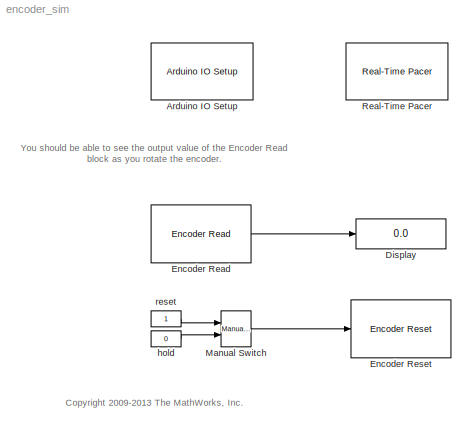
MODEL encoder_sim
KIND model
BLOCK [Reference] Arduino IO Setup  REF=arduino_io_lib/Arduino IO Setup
  Ports = []
  Priority = 3
  SourceBlock = arduino_io_lib/Arduino IO Setup
  SourceType = Arduino IO Setup
  arduinoVar = Temporary arduino variable: Arduino2
  comPort = COM17
  workspaceVarName = b
BLOCK [Display] Display
  Decimation = 1
  Lockdown = off
  Ports = [1]
BLOCK [Reference] Encoder Read  REF=arduino_io_lib/Encoder Read
  DbDl = 17
  Ports = [0, 1]
  SourceBlock = arduino_io_lib/Encoder Read
  SourceType = Arduino IO Encoder Read
  T = 0.2
  arduinoVar = Temporary arduino variable: Arduino2
  encNum = 1
  pinA = 3
  pinB = 2
BLOCK [Reference] Encoder Reset  REF=arduino_io_lib/Encoder Reset
  Ports = [1]
  SourceBlock = arduino_io_lib/Encoder Reset
  SourceType = Arduino IO Encoder Reset
  T = 0.2
  arduinoVar = Temporary arduino variable: Arduino2
  encNum = 1
BLOCK [Reference] Manual Switch  REF=simulink/Signal\nRouting/Manual Switch
  Ports = [2, 1]
  SourceBlock = simulink/Signal\nRouting/Manual Switch
  action = 0
  sw = 0
  varsize = off
BLOCK [Reference] Real-Time Pacer  REF=arduino_io_lib/Real-Time Pacer
  Ports = []
  SourceBlock = arduino_io_lib/Real-Time Pacer
  SourceType = RealTime_Pacer
  simTimePerRealTime = 1
BLOCK [Constant] hold
  Value = 0
BLOCK [Constant] reset
ANNOTATION (root): <copyright redacted>
ANNOTATION (root): You should be able to see the output value of the Encoder Read \nblock as you rotate the encoder.
LINE Encoder Read:1 -> Display:1
LINE Manual Switch:1 -> Encoder Reset:1
LINE hold:1 -> Manual Switch:2
LINE reset:1 -> Manual Switch:1
